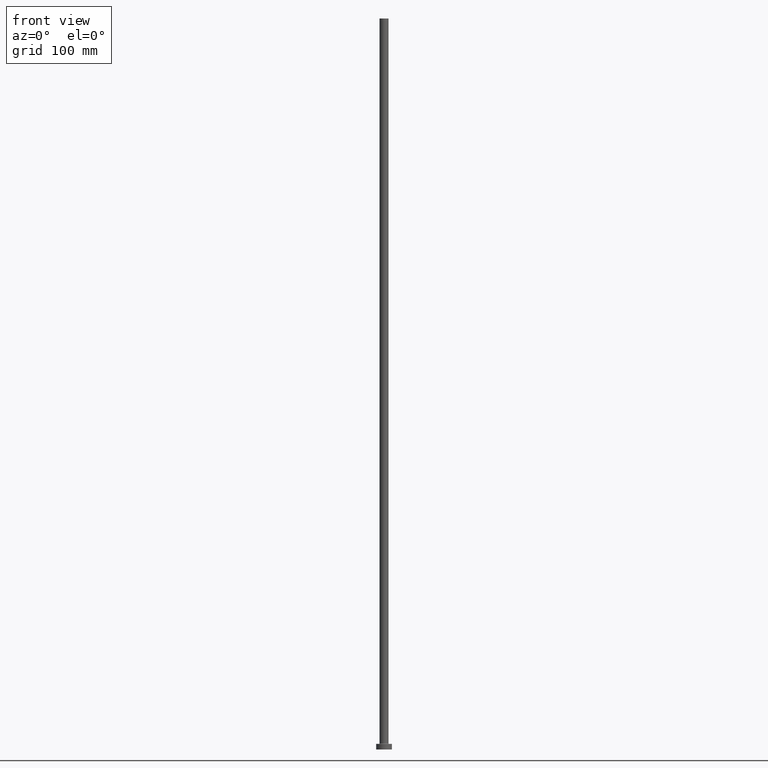
[diagram: clean part render]
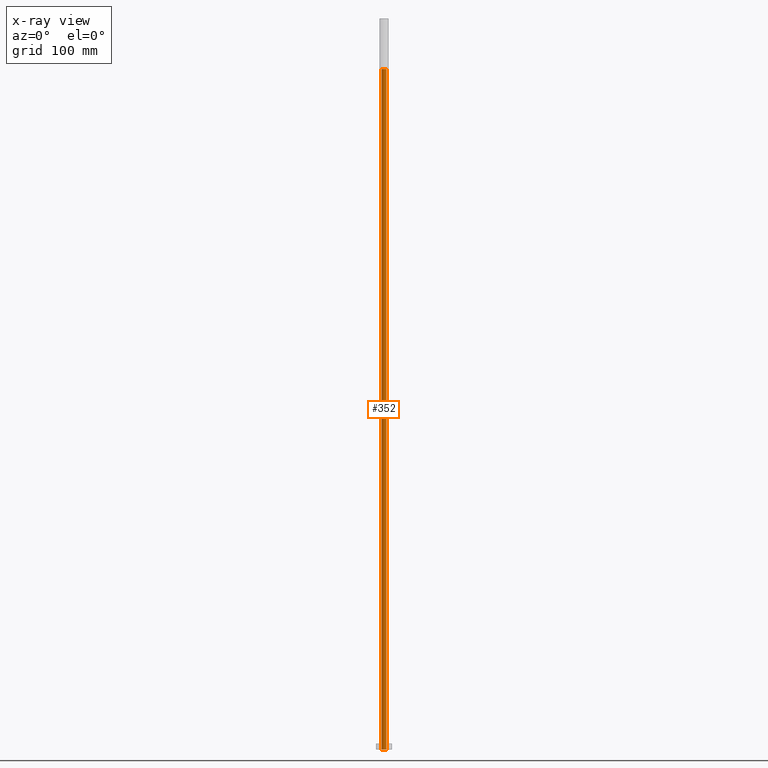
[diagram: x-ray — body ghosted, one internal face saturated and labeled with its STEP entity id]
A machine part, front view, then the same camera in x-ray: the body is ghosted and one INTERNAL B-rep face — a face not visible from any outside direction — is saturated and labeled: STEP entity #352.
In plain terms, the highlighted cylindrical surface (edge-blend (fillet) strip) has radius 2.15 mm, axis along (0, 0, -1).
Its self-contained STEP definition (entity closure, byte-faithful):
#21 = EDGE_CURVE ( 'NONE', #195, #202, #411, .T. ) ;
#37 = EDGE_CURVE ( 'NONE', #38, #195, #254, .T. ) ;
#38 = VERTEX_POINT ( 'NONE', #444 ) ;
#46 = DIRECTION ( 'NONE',  ( 1.000000000000000000, 0.000000000000000000, 0.000000000000000000 ) ) ;
#50 = ORIENTED_EDGE ( 'NONE', *, *, #394, .T. ) ;
#54 = CARTESIAN_POINT ( 'NONE',  ( 2.149999999999999911, 2.632990618166809235E-16, 605.0000000000000000 ) ) ;
#63 = VECTOR ( 'NONE', #326, 1000.000000000000000 ) ;
#70 = CARTESIAN_POINT ( 'NONE',  ( -2.149999999999999911, 0.000000000000000000, 0.000000000000000000 ) ) ;
#80 = EDGE_CURVE ( 'NONE', #38, #102, #427, .T. ) ;
#90 = AXIS2_PLACEMENT_3D ( 'NONE', #277, #446, #97 ) ;
#97 = DIRECTION ( 'NONE',  ( 1.000000000000000000, 0.000000000000000000, 0.000000000000000000 ) ) ;
#102 = VERTEX_POINT ( 'NONE', #70 ) ;
#143 = CARTESIAN_POINT ( 'NONE',  ( 2.149999999999999911, 2.632990618166809235E-16, 0.000000000000000000 ) ) ;
#162 = CYLINDRICAL_SURFACE ( 'NONE', #264, 2.149999999999999911 ) ;
#195 = VERTEX_POINT ( 'NONE', #54 ) ;
#201 = AXIS2_PLACEMENT_3D ( 'NONE', #405, #368, #46 ) ;
#202 = VERTEX_POINT ( 'NONE', #143 ) ;
#235 = DIRECTION ( 'NONE',  ( 0.000000000000000000, 0.000000000000000000, -1.000000000000000000 ) ) ;
#242 = ORIENTED_EDGE ( 'NONE', *, *, #37, .T. ) ;
#243 = CARTESIAN_POINT ( 'NONE',  ( -2.149999999999999911, 0.000000000000000000, 611.0811183182042896 ) ) ;
#254 = CIRCLE ( 'NONE', #90, 2.149999999999999911 ) ;
#258 = VECTOR ( 'NONE', #235, 1000.000000000000000 ) ;
#264 = AXIS2_PLACEMENT_3D ( 'NONE', #315, #281, #425 ) ;
#274 = ORIENTED_EDGE ( 'NONE', *, *, #80, .F. ) ;
#277 = CARTESIAN_POINT ( 'NONE',  ( 0.000000000000000000, 0.000000000000000000, 605.0000000000000000 ) ) ;
#281 = DIRECTION ( 'NONE',  ( 0.000000000000000000, 0.000000000000000000, -1.000000000000000000 ) ) ;
#315 = CARTESIAN_POINT ( 'NONE',  ( 0.000000000000000000, 0.000000000000000000, 611.0811183182042896 ) ) ;
#326 = DIRECTION ( 'NONE',  ( 0.000000000000000000, 0.000000000000000000, -1.000000000000000000 ) ) ;
#352 = ADVANCED_FACE ( 'NONE', ( #361 ), #162, .F. ) ;
#360 = ORIENTED_EDGE ( 'NONE', *, *, #21, .T. ) ;
#361 = FACE_OUTER_BOUND ( 'NONE', #420, .T. ) ;
#368 = DIRECTION ( 'NONE',  ( -0.000000000000000000, -0.000000000000000000, -1.000000000000000000 ) ) ;
#384 = CARTESIAN_POINT ( 'NONE',  ( 2.149999999999999911, 2.632990618166809235E-16, 611.0811183182042896 ) ) ;
#388 = CIRCLE ( 'NONE', #201, 2.149999999999999911 ) ;
#394 = EDGE_CURVE ( 'NONE', #202, #102, #388, .T. ) ;
#405 = CARTESIAN_POINT ( 'NONE',  ( 0.000000000000000000, 0.000000000000000000, 0.000000000000000000 ) ) ;
#411 = LINE ( 'NONE', #384, #258 ) ;
#420 = EDGE_LOOP ( 'NONE', ( #242, #360, #50, #274 ) ) ;
#425 = DIRECTION ( 'NONE',  ( -1.000000000000000000, 0.000000000000000000, 0.000000000000000000 ) ) ;
#427 = LINE ( 'NONE', #243, #63 ) ;
#444 = CARTESIAN_POINT ( 'NONE',  ( -2.149999999999999911, 0.000000000000000000, 605.0000000000000000 ) ) ;
#446 = DIRECTION ( 'NONE',  ( 0.000000000000000000, 0.000000000000000000, 1.000000000000000000 ) ) ;